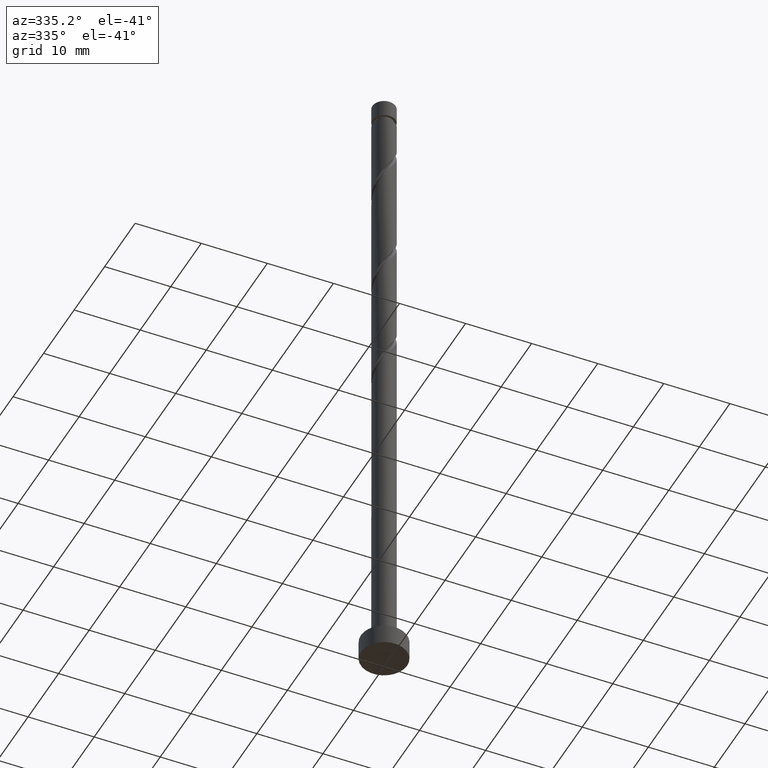
[diagram: clean part render]
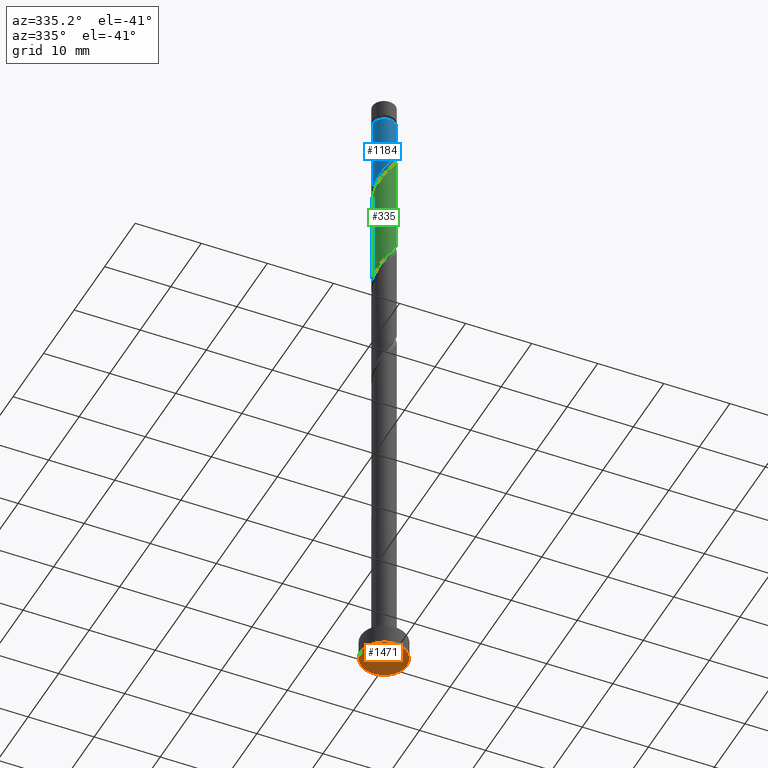
[diagram: same view with three faces highlighted in distinct colors, each labeled with its STEP entity id]
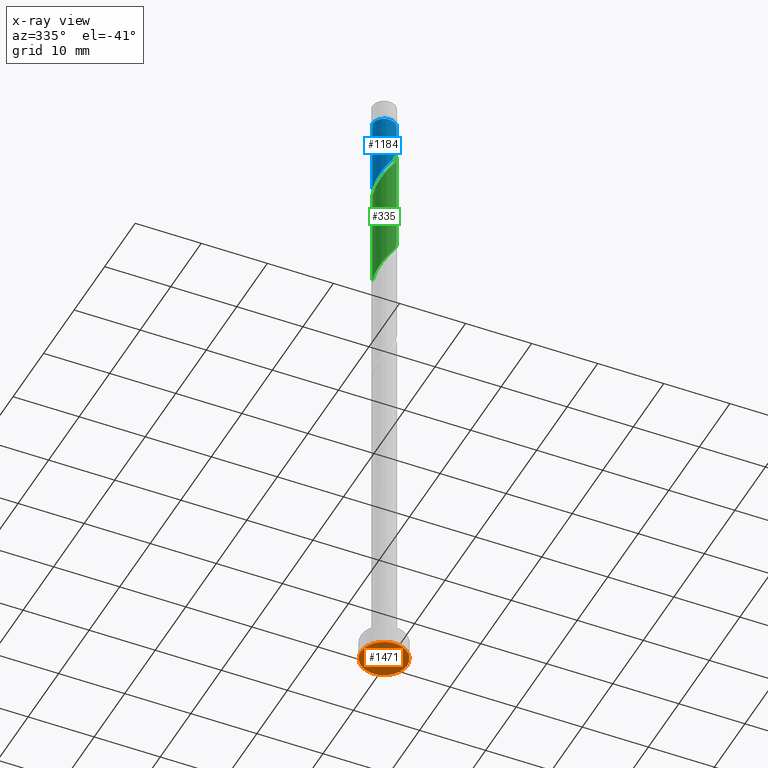
[diagram: x-ray of the same camera — body ghosted, the three highlighted faces saturated]
A machine part, auxiliary view with three faces highlighted in distinct colors.
The next image is the same camera in x-ray (body ghosted, the three faces saturated) — at least one of them is partly hidden behind the body in this view.
Their STEP definitions:

[orange] entity #1471 — the highlighted planar face has unit normal (0, 0, 1).
#31 = EDGE_CURVE ( 'NONE', #670, #332, #1035, .T. ) ;
#62 = DIRECTION ( 'NONE',  ( 0.000000000000000000, 0.000000000000000000, 1.000000000000000000 ) ) ;
#253 = CIRCLE ( 'NONE', #1145, 3.500000000000000444 ) ;
#256 = AXIS2_PLACEMENT_3D ( 'NONE', #1285, #62, #1417 ) ;
#279 = DIRECTION ( 'NONE',  ( 0.000000000000000000, 0.000000000000000000, 1.000000000000000000 ) ) ;
#308 = DIRECTION ( 'NONE',  ( 1.000000000000000000, 0.000000000000000000, 0.000000000000000000 ) ) ;
#332 = VERTEX_POINT ( 'NONE', #1000 ) ;
#412 = DIRECTION ( 'NONE',  ( 0.000000000000000000, 0.000000000000000000, 1.000000000000000000 ) ) ;
#653 = EDGE_CURVE ( 'NONE', #332, #670, #253, .T. ) ;
#670 = VERTEX_POINT ( 'NONE', #1334 ) ;
#688 = EDGE_LOOP ( 'NONE', ( #809, #740 ) ) ;
#740 = ORIENTED_EDGE ( 'NONE', *, *, #31, .F. ) ;
#745 = FACE_OUTER_BOUND ( 'NONE', #688, .T. ) ;
#809 = ORIENTED_EDGE ( 'NONE', *, *, #653, .F. ) ;
#1000 = CARTESIAN_POINT ( 'NONE',  ( -3.500000000000000444, 0.000000000000000000, 0.000000000000000000 ) ) ;
#1012 = CARTESIAN_POINT ( 'NONE',  ( 0.000000000000000000, 0.000000000000000000, 0.000000000000000000 ) ) ;
#1035 = CIRCLE ( 'NONE', #1223, 3.500000000000000444 ) ;
#1064 = PLANE ( 'NONE',  #256 ) ;
#1088 = CARTESIAN_POINT ( 'NONE',  ( 0.000000000000000000, 0.000000000000000000, 0.000000000000000000 ) ) ;
#1145 = AXIS2_PLACEMENT_3D ( 'NONE', #1012, #412, #308 ) ;
#1223 = AXIS2_PLACEMENT_3D ( 'NONE', #1088, #279, #1468 ) ;
#1285 = CARTESIAN_POINT ( 'NONE',  ( 0.000000000000000000, 0.000000000000000000, 0.000000000000000000 ) ) ;
#1334 = CARTESIAN_POINT ( 'NONE',  ( 3.500000000000000444, 4.286263797015737088E-16, 0.000000000000000000 ) ) ;
#1417 = DIRECTION ( 'NONE',  ( 1.000000000000000000, 0.000000000000000000, -0.000000000000000000 ) ) ;
#1468 = DIRECTION ( 'NONE',  ( 1.000000000000000000, 0.000000000000000000, 0.000000000000000000 ) ) ;
#1471 = ADVANCED_FACE ( 'NONE', ( #745 ), #1064, .F. ) ;

[blue] entity #1184 — the highlighted cylindrical surface (edge-blend (fillet) strip) has radius 1.75 mm, axis along (-0, -0, -1).
#23 = CIRCLE ( 'NONE', #397, 1.750000000000000222 ) ;
#72 = CARTESIAN_POINT ( 'NONE',  ( -1.561334355841583088, -0.8484997595190588715, 86.09623362087401688 ) ) ;
#80 = CARTESIAN_POINT ( 'NONE',  ( -1.176970363401351083, -1.331336762922906258, 87.02215954679991228 ) ) ;
#87 = CARTESIAN_POINT ( 'NONE',  ( 0.000000000000000000, 0.000000000000000000, 100.0000000000000000 ) ) ;
#99 = CARTESIAN_POINT ( 'NONE',  ( -0.04584483107230019616, -1.776405095719752802, 88.87401139865180255 ) ) ;
#119 = EDGE_CURVE ( 'NONE', #226, #1136, #1174, .T. ) ;
#124 = CARTESIAN_POINT ( 'NONE',  ( 0.000000000000000000, 0.000000000000000000, 96.74438176902215503 ) ) ;
#147 = CARTESIAN_POINT ( 'NONE',  ( 1.750000000000000000, 2.143131898507867804E-16, 100.0000000000000000 ) ) ;
#152 = CARTESIAN_POINT ( 'NONE',  ( -1.749999999999999778, -1.000910758641883447E-15, 84.77523665734425151 ) ) ;
#179 = CYLINDRICAL_SURFACE ( 'NONE', #774, 1.750000000000000000 ) ;
#188 = CARTESIAN_POINT ( 'NONE',  ( 1.750000000000000000, -0.02257793008103950450, 93.07455261674519420 ) ) ;
#226 = VERTEX_POINT ( 'NONE', #485 ) ;
#290 = CARTESIAN_POINT ( 'NONE',  ( 1.311110765996653216, -1.159089538943247399, 91.18882621346661210 ) ) ;
#299 = CARTESIAN_POINT ( 'NONE',  ( -1.659356368983970986, -0.5559104610567530136, 85.63327065791102655 ) ) ;
#320 = CARTESIAN_POINT ( 'NONE',  ( 1.741456639384053151, -0.3536178527455198783, 92.57771510235548362 ) ) ;
#397 = AXIS2_PLACEMENT_3D ( 'NONE', #124, #586, #1060 ) ;
#410 = CARTESIAN_POINT ( 'NONE',  ( -1.749999999999999556, -1.000910758641883644E-15, 84.77523665734425151 ) ) ;
#415 = CARTESIAN_POINT ( 'NONE',  ( 0.5644862759827011800, -1.684954615668426081, 89.79993732457769795 ) ) ;
#435 = CARTESIAN_POINT ( 'NONE',  ( -0.6506463749023350118, -1.653594904280247579, 87.94808547272585031 ) ) ;
#465 = CARTESIAN_POINT ( 'NONE',  ( 1.750000000000000444, 2.143131898507868297E-16, 96.74438176902215503 ) ) ;
#468 = CARTESIAN_POINT ( 'NONE',  ( 1.750000000000000000, 3.697394220356211270E-16, 93.10856999067755169 ) ) ;
#484 = LINE ( 'NONE', #147, #980 ) ;
#485 = CARTESIAN_POINT ( 'NONE',  ( -1.750000000000000444, 0.000000000000000000, 96.74438176902215503 ) ) ;
#539 = FACE_OUTER_BOUND ( 'NONE', #623, .T. ) ;
#553 = ORIENTED_EDGE ( 'NONE', *, *, #1115, .F. ) ;
#586 = DIRECTION ( 'NONE',  ( -0.000000000000000000, -0.000000000000000000, -1.000000000000000000 ) ) ;
#623 = EDGE_LOOP ( 'NONE', ( #553, #721, #1347, #1448 ) ) ;
#638 = CARTESIAN_POINT ( 'NONE',  ( 0.8356091416033628594, -1.537614178677112475, 90.26290028754065986 ) ) ;
#648 = CARTESIAN_POINT ( 'NONE',  ( 1.106732007224024317, -1.390273741685799536, 90.72586325050365019 ) ) ;
#713 = CARTESIAN_POINT ( 'NONE',  ( -1.750000000000000000, 0.000000000000000000, 100.0000000000000000 ) ) ;
#721 = ORIENTED_EDGE ( 'NONE', *, *, #815, .T. ) ;
#733 = DIRECTION ( 'NONE',  ( -0.000000000000000000, -0.000000000000000000, -1.000000000000000000 ) ) ;
#761 = CARTESIAN_POINT ( 'NONE',  ( 1.749417510755205685, -0.04514834507553627113, 93.04067806531843132 ) ) ;
#774 = AXIS2_PLACEMENT_3D ( 'NONE', #87, #1227, #905 ) ;
#794 = CARTESIAN_POINT ( 'NONE',  ( 1.515489524769282781, -0.9279053362006951522, 91.65178917642955980 ) ) ;
#815 = EDGE_CURVE ( 'NONE', #975, #226, #23, .T. ) ;
#905 = DIRECTION ( 'NONE',  ( -1.000000000000000000, 0.000000000000000000, 0.000000000000000000 ) ) ;
#934 = DIRECTION ( 'NONE',  ( -0.000000000000000000, -0.000000000000000000, -1.000000000000000000 ) ) ;
#945 =( BOUNDED_CURVE ( )  B_SPLINE_CURVE ( 2, ( #1357, #188, #761, #320, #1104, #794, #290, #648, #638, #415, #1243, #99, #1475, #435, #1213, #80, #1097, #72, #299, #989, #410 ),
 .UNSPECIFIED., .F., .T. ) 
 B_SPLINE_CURVE_WITH_KNOTS ( ( 3, 2, 2, 2, 2, 2, 2, 2, 2, 2, 3 ),
 ( 0.3045248053855291737, 0.3055555555555555802, 0.3194444444444444198, 0.3333333333333333148, 0.3472222222222222099, 0.3611111111111111049, 0.3750000000000000000, 0.3888888888888888951, 0.4027777777777777901, 0.4166666666666666852, 0.4295248053855288406 ),
 .UNSPECIFIED. ) 
 CURVE ( )  GEOMETRIC_REPRESENTATION_ITEM ( )  RATIONAL_B_SPLINE_CURVE ( ( 0.9071930855141212557, 0.9080659294509688673, 0.9090909090909088386, 0.8952797754656434126, 0.9090909090909088386, 0.8952797754656434126, 0.9090909090909088386, 0.8952797754656434126, 0.9090909090909088386, 0.8952797754656434126, 0.9090909090909088386, 0.8952797754656434126, 0.9090909090909088386, 0.8952797754656434126, 0.9090909090909088386, 0.8952797754656434126, 0.9090909090909088386, 0.8952797754656434126, 0.9090909090909088386, 0.8963047551055837170, 0.9071930855141207006 ) ) 
 REPRESENTATION_ITEM ( '' )  );
#975 = VERTEX_POINT ( 'NONE', #465 ) ;
#980 = VECTOR ( 'NONE', #733, 1000.000000000000000 ) ;
#986 = VECTOR ( 'NONE', #934, 1000.000000000000000 ) ;
#989 = CARTESIAN_POINT ( 'NONE',  ( -1.749999999999998224, -0.2853451506858039055, 85.20515616970988049 ) ) ;
#1060 = DIRECTION ( 'NONE',  ( -1.000000000000000000, 0.000000000000000000, 0.000000000000000000 ) ) ;
#1097 = CARTESIAN_POINT ( 'NONE',  ( -1.369152359621467197, -1.089918261220982121, 86.55919658383695037 ) ) ;
#1104 = CARTESIAN_POINT ( 'NONE',  ( 1.628473082076667966, -0.6407615944731065438, 92.11475213939250750 ) ) ;
#1115 = EDGE_CURVE ( 'NONE', #975, #1373, #484, .T. ) ;
#1136 = VERTEX_POINT ( 'NONE', #152 ) ;
#1174 = LINE ( 'NONE', #713, #986 ) ;
#1184 = ADVANCED_FACE ( 'NONE', ( #539 ), #179, .T. ) ;
#1213 = CARTESIAN_POINT ( 'NONE',  ( -0.9138083691518430474, -1.492465833601576586, 87.48512250976288840 ) ) ;
#1227 = DIRECTION ( 'NONE',  ( -0.000000000000000000, -0.000000000000000000, -1.000000000000000000 ) ) ;
#1243 = CARTESIAN_POINT ( 'NONE',  ( 0.2593207224552008805, -1.730679855694088776, 89.33697436161476446 ) ) ;
#1249 = EDGE_CURVE ( 'NONE', #1373, #1136, #945, .T. ) ;
#1347 = ORIENTED_EDGE ( 'NONE', *, *, #119, .T. ) ;
#1357 = CARTESIAN_POINT ( 'NONE',  ( 1.750000000000000000, 3.697394220356210777E-16, 93.10856999067755169 ) ) ;
#1373 = VERTEX_POINT ( 'NONE', #468 ) ;
#1448 = ORIENTED_EDGE ( 'NONE', *, *, #1249, .F. ) ;
#1475 = CARTESIAN_POINT ( 'NONE',  ( -0.3482456029873172154, -1.715000000000000080, 88.41104843568882643 ) ) ;

[green] entity #335 — the highlighted cylindrical surface (edge-blend (fillet) strip) has radius 1.75 mm, axis along (-0, -0, -1).
#13 = CARTESIAN_POINT ( 'NONE',  ( 1.749999999999999778, 1.830023401994488252E-16, 76.44190332401089449 ) ) ;
#33 = FACE_OUTER_BOUND ( 'NONE', #316, .T. ) ;
#53 = EDGE_CURVE ( 'NONE', #534, #1325, #327, .T. ) ;
#106 = CARTESIAN_POINT ( 'NONE',  ( -1.750000000000002442, -9.747675671848132928E-16, 83.71352688070007275 ) ) ;
#109 = CARTESIAN_POINT ( 'NONE',  ( -0.6506463749023350118, -1.653594904280247579, 71.28141880605917891 ) ) ;
#114 = CARTESIAN_POINT ( 'NONE',  ( -1.750000000000002442, -0.02257793008102865553, 83.74754425463241603 ) ) ;
#135 = CARTESIAN_POINT ( 'NONE',  ( -1.741456639384054927, -0.3536178527455198228, 84.24438176902215503 ) ) ;
#139 = CARTESIAN_POINT ( 'NONE',  ( 1.515489524769282781, -0.9279053362006951522, 74.98512250976290261 ) ) ;
#176 = CYLINDRICAL_SURFACE ( 'NONE', #428, 1.750000000000000000 ) ;
#196 = CARTESIAN_POINT ( 'NONE',  ( -1.750000000000002442, -9.747675671848132928E-16, 83.71352688070007275 ) ) ;
#222 = DIRECTION ( 'NONE',  ( -0.000000000000000000, -0.000000000000000000, -1.000000000000000000 ) ) ;
#231 = CARTESIAN_POINT ( 'NONE',  ( -1.176970363401351083, -1.331336762922906258, 70.35549288013325508 ) ) ;
#250 = CARTESIAN_POINT ( 'NONE',  ( 1.750000000000000222, -0.02257793008103716956, 76.40788595007855122 ) ) ;
#270 = CARTESIAN_POINT ( 'NONE',  ( 1.750000000000002442, 9.822370504582602460E-16, 92.04686021403342977 ) ) ;
#316 = EDGE_LOOP ( 'NONE', ( #346, #864, #762, #697 ) ) ;
#327 = LINE ( 'NONE', #1251, #1395 ) ;
#334 = CARTESIAN_POINT ( 'NONE',  ( -1.311110765996656102, -1.159089538943247844, 85.63327065791105497 ) ) ;
#335 = ADVANCED_FACE ( 'NONE', ( #33 ), #176, .T. ) ;
#346 = ORIENTED_EDGE ( 'NONE', *, *, #962, .F. ) ;
#351 = CARTESIAN_POINT ( 'NONE',  ( 1.311110765996653216, -1.159089538943247399, 74.52215954679991228 ) ) ;
#358 = CARTESIAN_POINT ( 'NONE',  ( -1.628473082076670408, -0.6407615944731072100, 84.70734473198513115 ) ) ;
#360 = CARTESIAN_POINT ( 'NONE',  ( 1.749417510755205685, -0.04514834507553627113, 76.37401139865178834 ) ) ;
#366 = CARTESIAN_POINT ( 'NONE',  ( -1.369152359621467197, -1.089918261220982121, 69.89252991717029317 ) ) ;
#428 = AXIS2_PLACEMENT_3D ( 'NONE', #635, #579, #1024 ) ;
#443 = CARTESIAN_POINT ( 'NONE',  ( -1.750000000000000000, -8.141736768057111944E-16, 68.10856999067758011 ) ) ;
#463 = CARTESIAN_POINT ( 'NONE',  ( -1.749417510755208127, -0.04514834507553529275, 83.78141880605922154 ) ) ;
#519 =( BOUNDED_CURVE ( )  B_SPLINE_CURVE ( 2, ( #13, #250, #360, #822, #929, #139, #351, #1486, #1402, #576, #1275, #1282, #924, #109, #807, #231, #366, #568, #592, #1288, #1133 ),
 .UNSPECIFIED., .F., .T. ) 
 B_SPLINE_CURVE_WITH_KNOTS ( ( 3, 2, 2, 2, 2, 2, 2, 2, 2, 2, 3 ),
 ( 0.5545248053855290626, 0.5555555555555555802, 0.5694444444444444198, 0.5833333333333333703, 0.5972222222222222099, 0.6111111111111111605, 0.6250000000000000000, 0.6388888888888888395, 0.6527777777777777901, 0.6666666666666666297, 0.6795248053855290626 ),
 .UNSPECIFIED. ) 
 CURVE ( )  GEOMETRIC_REPRESENTATION_ITEM ( )  RATIONAL_B_SPLINE_CURVE ( ( 0.9071930855141210337, 0.9080659294509687562, 0.9090909090909088386, 0.8952797754656434126, 0.9090909090909088386, 0.8952797754656434126, 0.9090909090909088386, 0.8952797754656434126, 0.9090909090909088386, 0.8952797754656434126, 0.9090909090909088386, 0.8952797754656434126, 0.9090909090909088386, 0.8952797754656434126, 0.9090909090909088386, 0.8952797754656434126, 0.9090909090909088386, 0.8952797754656434126, 0.9090909090909088386, 0.8963047551055834949, 0.9071930855141210337 ) ) 
 REPRESENTATION_ITEM ( '' )  );
#534 = VERTEX_POINT ( 'NONE', #196 ) ;
#565 = CARTESIAN_POINT ( 'NONE',  ( 0.3482456029873171044, -1.715000000000002744, 88.41104843568884064 ) ) ;
#568 = CARTESIAN_POINT ( 'NONE',  ( -1.561334355841583088, -0.8484997595190588715, 69.42956695420730284 ) ) ;
#576 = CARTESIAN_POINT ( 'NONE',  ( 0.5644862759827011800, -1.684954615668426081, 73.13327065791104076 ) ) ;
#579 = DIRECTION ( 'NONE',  ( -0.000000000000000000, -0.000000000000000000, -1.000000000000000000 ) ) ;
#589 = CARTESIAN_POINT ( 'NONE',  ( -1.106732007224026093, -1.390273741685800868, 86.09623362087400267 ) ) ;
#592 = CARTESIAN_POINT ( 'NONE',  ( -1.659356368983970986, -0.5559104610567530136, 68.96660399124438356 ) ) ;
#593 = VECTOR ( 'NONE', #222, 1000.000000000000000 ) ;
#635 = CARTESIAN_POINT ( 'NONE',  ( 0.000000000000000000, 0.000000000000000000, 100.0000000000000000 ) ) ;
#689 =( BOUNDED_CURVE ( )  B_SPLINE_CURVE ( 2, ( #106, #114, #463, #135, #358, #933, #334, #589, #1394, #692, #1266, #921, #565, #1021, #1149, #1273, #1031, #1258, #1131, #1375, #1042 ),
 .UNSPECIFIED., .F., .T. ) 
 B_SPLINE_CURVE_WITH_KNOTS ( ( 3, 2, 2, 2, 2, 2, 2, 2, 2, 2, 3 ),
 ( 0.5545248053855287296, 0.5555555555555555802, 0.5694444444444444198, 0.5833333333333332593, 0.5972222222222222099, 0.6111111111111111605, 0.6250000000000000000, 0.6388888888888888395, 0.6527777777777777901, 0.6666666666666667407, 0.6795248053855293957 ),
 .UNSPECIFIED. ) 
 CURVE ( )  GEOMETRIC_REPRESENTATION_ITEM ( )  RATIONAL_B_SPLINE_CURVE ( ( 0.9071930855141261407, 0.9080659294509739743, 0.9090909090909143897, 0.8952797754656489637, 0.9090909090909143897, 0.8952797754656489637, 0.9090909090909143897, 0.8952797754656489637, 0.9090909090909143897, 0.8952797754656489637, 0.9090909090909143897, 0.8952797754656489637, 0.9090909090909143897, 0.8952797754656489637, 0.9090909090909143897, 0.8952797754656489637, 0.9090909090909143897, 0.8952797754656489637, 0.9090909090909143897, 0.8963047551055887130, 0.9071930855141271399 ) ) 
 REPRESENTATION_ITEM ( '' )  );
#692 = CARTESIAN_POINT ( 'NONE',  ( -0.5644862759827025123, -1.684954615668427635, 87.02215954679992649 ) ) ;
#697 = ORIENTED_EDGE ( 'NONE', *, *, #770, .F. ) ;
#762 = ORIENTED_EDGE ( 'NONE', *, *, #53, .T. ) ;
#770 = EDGE_CURVE ( 'NONE', #1462, #1325, #519, .T. ) ;
#807 = CARTESIAN_POINT ( 'NONE',  ( -0.9138083691518430474, -1.492465833601576586, 70.81845584309623121 ) ) ;
#822 = CARTESIAN_POINT ( 'NONE',  ( 1.741456639384053151, -0.3536178527455198783, 75.91104843568884064 ) ) ;
#864 = ORIENTED_EDGE ( 'NONE', *, *, #1294, .F. ) ;
#916 = CARTESIAN_POINT ( 'NONE',  ( 1.750000000000000000, 2.143131898507867804E-16, 100.0000000000000000 ) ) ;
#921 = CARTESIAN_POINT ( 'NONE',  ( 0.04584483107229878063, -1.776405095719754357, 87.94808547272583610 ) ) ;
#924 = CARTESIAN_POINT ( 'NONE',  ( -0.3482456029873172154, -1.715000000000000080, 71.74438176902214082 ) ) ;
#929 = CARTESIAN_POINT ( 'NONE',  ( 1.628473082076667966, -0.6407615944731065438, 75.44808547272583610 ) ) ;
#933 = CARTESIAN_POINT ( 'NONE',  ( -1.515489524769285445, -0.9279053362006948191, 85.17030769494807885 ) ) ;
#944 = LINE ( 'NONE', #916, #593 ) ;
#962 = EDGE_CURVE ( 'NONE', #1146, #1462, #944, .T. ) ;
#1021 = CARTESIAN_POINT ( 'NONE',  ( 0.6506463749023343457, -1.653594904280250244, 88.87401139865177413 ) ) ;
#1024 = DIRECTION ( 'NONE',  ( -1.000000000000000000, 0.000000000000000000, 0.000000000000000000 ) ) ;
#1031 = CARTESIAN_POINT ( 'NONE',  ( 1.369152359621468751, -1.089918261220984119, 90.26290028754065986 ) ) ;
#1042 = CARTESIAN_POINT ( 'NONE',  ( 1.750000000000002442, 9.822370504582602460E-16, 92.04686021403342977 ) ) ;
#1131 = CARTESIAN_POINT ( 'NONE',  ( 1.659356368983973207, -0.5559104610567555671, 91.18882621346662631 ) ) ;
#1133 = CARTESIAN_POINT ( 'NONE',  ( -1.749999999999999778, -8.141736768057111944E-16, 68.10856999067758011 ) ) ;
#1140 = DIRECTION ( 'NONE',  ( -0.000000000000000000, -0.000000000000000000, -1.000000000000000000 ) ) ;
#1146 = VERTEX_POINT ( 'NONE', #270 ) ;
#1149 = CARTESIAN_POINT ( 'NONE',  ( 0.9138083691518438245, -1.492465833601579694, 89.33697436161475025 ) ) ;
#1251 = CARTESIAN_POINT ( 'NONE',  ( -1.750000000000000000, 0.000000000000000000, 100.0000000000000000 ) ) ;
#1258 = CARTESIAN_POINT ( 'NONE',  ( 1.561334355841584198, -0.8484997595190600927, 90.72586325050363598 ) ) ;
#1266 = CARTESIAN_POINT ( 'NONE',  ( -0.2593207224552018242, -1.730679855694091662, 87.48512250976291682 ) ) ;
#1273 = CARTESIAN_POINT ( 'NONE',  ( 1.176970363401351971, -1.331336762922908479, 89.79993732457768374 ) ) ;
#1275 = CARTESIAN_POINT ( 'NONE',  ( 0.2593207224552008805, -1.730679855694088776, 72.67030769494809306 ) ) ;
#1282 = CARTESIAN_POINT ( 'NONE',  ( -0.04584483107230019616, -1.776405095719752802, 72.20734473198510273 ) ) ;
#1288 = CARTESIAN_POINT ( 'NONE',  ( -1.750000000000000444, -0.2853451506857991316, 68.53848950304319487 ) ) ;
#1294 = EDGE_CURVE ( 'NONE', #534, #1146, #689, .T. ) ;
#1312 = CARTESIAN_POINT ( 'NONE',  ( 1.750000000000000000, 1.830023401994488252E-16, 76.44190332401089449 ) ) ;
#1325 = VERTEX_POINT ( 'NONE', #443 ) ;
#1375 = CARTESIAN_POINT ( 'NONE',  ( 1.750000000000004663, -0.2853451506857939690, 91.61694070166778658 ) ) ;
#1394 = CARTESIAN_POINT ( 'NONE',  ( -0.8356091416033647468, -1.537614178677114474, 86.55919658383696458 ) ) ;
#1395 = VECTOR ( 'NONE', #1140, 1000.000000000000000 ) ;
#1402 = CARTESIAN_POINT ( 'NONE',  ( 0.8356091416033628594, -1.537614178677112475, 73.59623362087403109 ) ) ;
#1462 = VERTEX_POINT ( 'NONE', #1312 ) ;
#1486 = CARTESIAN_POINT ( 'NONE',  ( 1.106732007224024317, -1.390273741685799536, 74.05919658383697879 ) ) ;